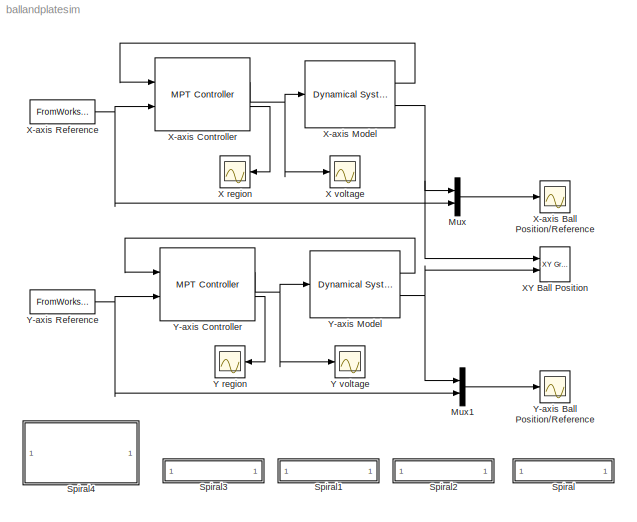
MODEL ballandplatesim
KIND model
CONFIG AbsTol = auto
CONFIG FixedStep = auto
CONFIG MaxStep = auto
CONFIG MinStep = auto
CONFIG RelTol = 1e-3
CONFIG Solver = ode45
CONFIG SolverMode = Auto
CONFIG StartTime = 0.0
CONFIG StopTime = stoptime
BLOCK [Mux] Mux
  DisplayOption = bar
  Inputs = 2
  Ports = [2, 1]
BLOCK [Mux] Mux1
  DisplayOption = bar
  Inputs = 2
  Ports = [2, 1]
BLOCK [SubSystem] Spiral
  MaskDisplay = disp('Spiral')
  MaskIconFrame = on
  MaskIconOpaque = on
  MaskIconRotate = none
  MaskIconUnits = autoscale
  OpenFcn = load kreisvolvente_1
  Permissions = ReadWrite
  Ports = []
  RTWFcnNameOpts = Auto
  RTWFileNameOpts = Auto
  RTWSystemCode = Auto
  ShowPortLabels = on
  SimViewingDevice = off
  TreatAsAtomicUnit = off
BLOCK [SubSystem] Spiral1
  MaskDisplay = disp('Box')
  MaskIconFrame = on
  MaskIconOpaque = on
  MaskIconRotate = none
  MaskIconUnits = autoscale
  OpenFcn = load quadrat_20
  Permissions = ReadWrite
  Ports = []
  RTWFcnNameOpts = Auto
  RTWFileNameOpts = Auto
  RTWSystemCode = Auto
  ShowPortLabels = on
  SimViewingDevice = off
  TreatAsAtomicUnit = off
BLOCK [SubSystem] Spiral2
  MaskDisplay = disp('Circle')
  MaskIconFrame = on
  MaskIconOpaque = on
  MaskIconRotate = none
  MaskIconUnits = autoscale
  OpenFcn = load circle_10
  Permissions = ReadWrite
  Ports = []
  RTWFcnNameOpts = Auto
  RTWFileNameOpts = Auto
  RTWSystemCode = Auto
  ShowPortLabels = on
  SimViewingDevice = off
  TreatAsAtomicUnit = off
BLOCK [SubSystem] Spiral3
  MaskDisplay = disp('Star')
  MaskIconFrame = on
  MaskIconOpaque = on
  MaskIconRotate = none
  MaskIconUnits = autoscale
  OpenFcn = load star_40
  Permissions = ReadWrite
  Ports = []
  RTWFcnNameOpts = Auto
  RTWFileNameOpts = Auto
  RTWSystemCode = Auto
  ShowPortLabels = on
  SimViewingDevice = off
  TreatAsAtomicUnit = off
BLOCK [SubSystem] Spiral4
  MaskDisplay = fprintf('Load parameters\\nand controller')
  MaskIconFrame = on
  MaskIconOpaque = on
  MaskIconRotate = none
  MaskIconUnits = autoscale
  OpenFcn = ballandplate
  Permissions = ReadWrite
  Ports = []
  RTWFcnNameOpts = Auto
  RTWFileNameOpts = Auto
  RTWSystemCode = Auto
  ShowPortLabels = on
  SimViewingDevice = off
  TreatAsAtomicUnit = off
BLOCK [Scope] X region
  DataFormat = StructureWithTime
  Decimation = 1
  Floating = off
  Grid = on
  LimitDataPoints = on
  MaxDataPoints = 5000
  NumInputPorts = 1
  Ports = [1]
  SampleInput = off
  SampleTime = 0
  SaveName = ScopeData4
  SaveToWorkspace = off
  TickLabels = OneTimeTick
  TimeRange = 25
  YMax = 300
  YMin = 0
  ZoomMode = on
BLOCK [Scope] X voltage
  DataFormat = StructureWithTime
  Decimation = 1
  Floating = off
  Grid = on
  LimitDataPoints = on
  MaxDataPoints = 5000
  NumInputPorts = 1
  Ports = [1]
  SampleInput = off
  SampleTime = 0
  SaveName = ScopeData2
  SaveToWorkspace = off
  TickLabels = OneTimeTick
  TimeRange = 25
  YMax = 20
  YMin = -20
  ZoomMode = on
BLOCK [Scope] X-axis Ball Position//Reference
  DataFormat = StructureWithTime
  Decimation = 1
  Floating = off
  Grid = on
  LimitDataPoints = on
  MaxDataPoints = 5000
  NumInputPorts = 1
  Ports = [1]
  SampleInput = off
  SampleTime = 0
  SaveName = ScopeData
  SaveToWorkspace = off
  TickLabels = OneTimeTick
  TimeRange = 25
  YMax = 20
  YMin = -20
  ZoomMode = on
BLOCK [Reference] X-axis Controller  REF=mpt_sim/MPT Controller  (lib defined in mdl_5038361577fd, mdl_5af201d48cda)
  Ports = [2, 2]
  SourceBlock = mpt_sim/MPT Controller
  SourceType = MPT Controller
  Ts = []
  ctrl = ecx
  infbreak = on
BLOCK [Reference] X-axis Model  REF=mpt_sim/Dynamical System  (lib defined in mdl_5038361577fd, mdl_5af201d48cda)
  Ports = [1, 2]
  SourceBlock = mpt_sim/Dynamical System
  SourceType = Dynamical System with Constraints
  Ts = []
  constr = on
  sysStruct = sysx
  x0 = [0;0;0;0]
BLOCK [FromWorkspace] X-axis Reference
  Interpolate = on
  OutputAfterFinalValue = Extrapolation
  SampleTime = 0.03
  VariableName = xref
BLOCK [Reference] XY Ball Position  REF=simulink/Sinks/XY Graph
  Ports = [2]
  SourceBlock = simulink/Sinks/XY Graph
  SourceType = XY scope.
  st = -1
  xmax = 30
  xmin = -30
  ymax = 30
  ymin = -30
BLOCK [Scope] Y region
  DataFormat = StructureWithTime
  Decimation = 1
  Floating = off
  Grid = on
  LimitDataPoints = on
  MaxDataPoints = 5000
  NumInputPorts = 1
  Ports = [1]
  SampleInput = off
  SampleTime = 0
  SaveName = ScopeData5
  SaveToWorkspace = off
  TickLabels = OneTimeTick
  TimeRange = 25
  YMax = 300
  YMin = 0
  ZoomMode = on
BLOCK [Scope] Y voltage
  DataFormat = StructureWithTime
  Decimation = 1
  Floating = off
  Grid = on
  LimitDataPoints = on
  MaxDataPoints = 5000
  NumInputPorts = 1
  Ports = [1]
  SampleInput = off
  SampleTime = 0
  SaveName = ScopeData3
  SaveToWorkspace = off
  TickLabels = OneTimeTick
  TimeRange = 25
  YMax = 20
  YMin = -20
  ZoomMode = on
BLOCK [Scope] Y-axis Ball Position//Reference
  DataFormat = StructureWithTime
  Decimation = 1
  Floating = off
  Grid = on
  LimitDataPoints = on
  MaxDataPoints = 5000
  NumInputPorts = 1
  Ports = [1]
  SampleInput = off
  SampleTime = 0
  SaveName = ScopeData1
  SaveToWorkspace = off
  TickLabels = OneTimeTick
  TimeRange = 25
  YMax = 20
  YMin = -20
  ZoomMode = on
BLOCK [Reference] Y-axis Controller  REF=mpt_sim/MPT Controller  (lib defined in mdl_5038361577fd, mdl_5af201d48cda)
  Ports = [2, 2]
  SourceBlock = mpt_sim/MPT Controller
  SourceType = MPT Controller
  Ts = []
  ctrl = ecy
  infbreak = on
BLOCK [Reference] Y-axis Model  REF=mpt_sim/Dynamical System  (lib defined in mdl_5038361577fd, mdl_5af201d48cda)
  Ports = [1, 2]
  SourceBlock = mpt_sim/Dynamical System
  SourceType = Dynamical System with Constraints
  Ts = []
  constr = on
  sysStruct = sysy
  x0 = [0;0;0;0]
BLOCK [FromWorkspace] Y-axis Reference
  Interpolate = on
  OutputAfterFinalValue = Extrapolation
  SampleTime = 0.03
  VariableName = yref
LINE Mux1:1 -> Y-axis Ball Position//Reference:1
LINE Mux:1 -> X-axis Ball Position//Reference:1
NET X-axis Controller:1 -> X voltage:1, X-axis Model:1
LINE X-axis Controller:2 -> X region:1
LINE X-axis Model:1 -> X-axis Controller:1
NET X-axis Model:2 -> Mux:1, XY Ball Position:1
NET X-axis Reference:1 -> Mux:2, X-axis Controller:2
NET Y-axis Controller:1 -> Y voltage:1, Y-axis Model:1
LINE Y-axis Controller:2 -> Y region:1
LINE Y-axis Model:1 -> Y-axis Controller:1
NET Y-axis Model:2 -> Mux1:1, XY Ball Position:2
NET Y-axis Reference:1 -> Mux1:2, Y-axis Controller:2
note: NET lines group one-source signal fan-out (src -> all destinations, sorted); 1:1 wires keep LINE
